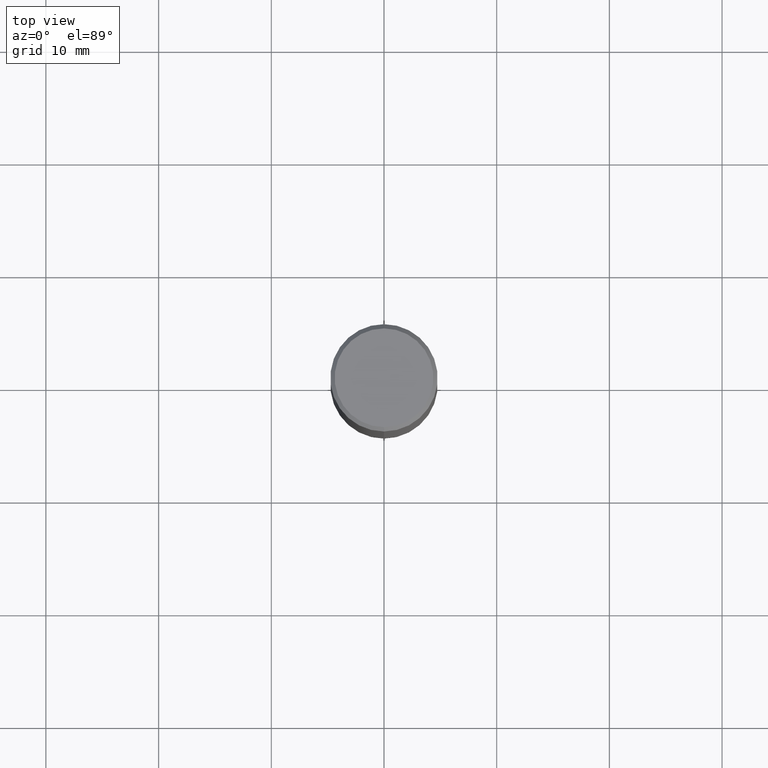
[diagram: clean part render]
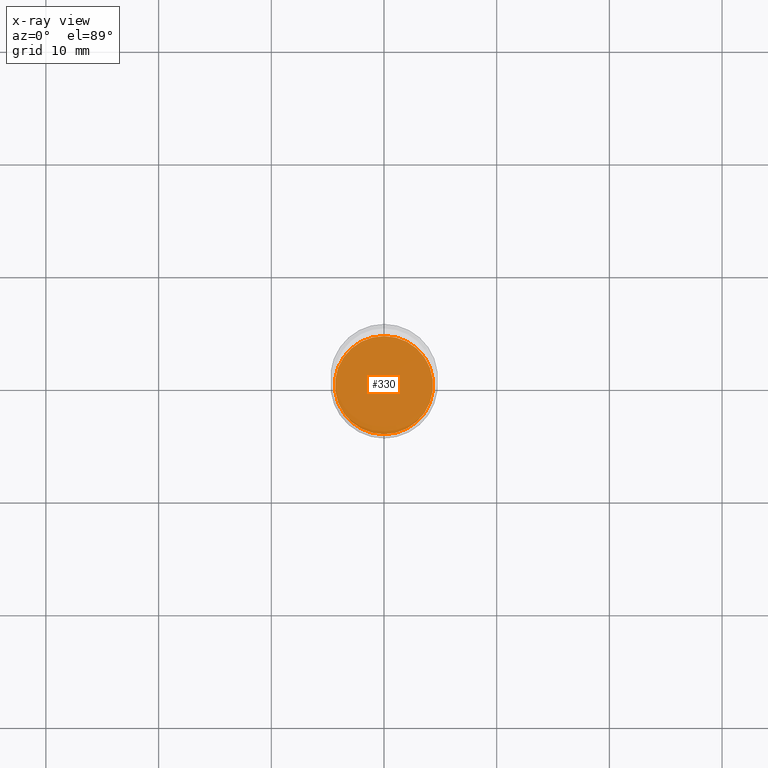
[diagram: x-ray — body ghosted, one internal face saturated and labeled with its STEP entity id]
A machine part, top view, then the same camera in x-ray: the body is ghosted and one INTERNAL B-rep face — a face not visible from any outside direction — is saturated and labeled: STEP entity #330.
In plain terms, the highlighted planar face has unit normal (-0, 0, 1).
Its self-contained STEP definition (entity closure, byte-faithful):
#1 = EDGE_LOOP ( 'NONE', ( #392, #140 ) ) ;
#55 = CARTESIAN_POINT ( 'NONE',  ( 3.667651660176758913E-29, -5.238011857969497816E-15, -1.500000000000000222 ) ) ;
#68 = VERTEX_POINT ( 'NONE', #490 ) ;
#94 = CIRCLE ( 'NONE', #136, 0.1713999999999999690 ) ;
#113 = EDGE_CURVE ( 'NONE', #243, #68, #94, .T. ) ;
#130 = CARTESIAN_POINT ( 'NONE',  ( 3.667651660176758913E-29, -5.238011857969497816E-15, -1.500000000000000222 ) ) ;
#135 = PLANE ( 'NONE',  #298 ) ;
#136 = AXIS2_PLACEMENT_3D ( 'NONE', #55, #372, #209 ) ;
#140 = ORIENTED_EDGE ( 'NONE', *, *, #113, .F. ) ;
#161 = CARTESIAN_POINT ( 'NONE',  ( 3.667651660176758913E-29, -5.238011857969497816E-15, -1.500000000000000222 ) ) ;
#209 = DIRECTION ( 'NONE',  ( -6.982962677686266711E-15, -1.000000000000000000, 3.187687273820611169E-15 ) ) ;
#243 = VERTEX_POINT ( 'NONE', #399 ) ;
#257 = AXIS2_PLACEMENT_3D ( 'NONE', #130, #285, #457 ) ;
#285 = DIRECTION ( 'NONE',  ( -2.445101106784506129E-29, 3.492007905312998807E-15, 1.000000000000000000 ) ) ;
#292 = CIRCLE ( 'NONE', #257, 0.1713999999999999690 ) ;
#298 = AXIS2_PLACEMENT_3D ( 'NONE', #161, #315, #317 ) ;
#315 = DIRECTION ( 'NONE',  ( -2.445101106784505568E-29, 3.492007905312998807E-15, 1.000000000000000000 ) ) ;
#317 = DIRECTION ( 'NONE',  ( -6.982962677686265922E-15, -1.000000000000000000, 3.492007905312998807E-15 ) ) ;
#330 = ADVANCED_FACE ( 'NONE', ( #500 ), #135, .F. ) ;
#372 = DIRECTION ( 'NONE',  ( -2.445101106784506129E-29, 3.492007905312998807E-15, 1.000000000000000000 ) ) ;
#392 = ORIENTED_EDGE ( 'NONE', *, *, #429, .F. ) ;
#399 = CARTESIAN_POINT ( 'NONE',  ( 1.219646605932247841E-15, 0.1713999999999947510, -1.500000000000000666 ) ) ;
#429 = EDGE_CURVE ( 'NONE', #68, #243, #292, .T. ) ;
#457 = DIRECTION ( 'NONE',  ( -6.982962677686266711E-15, -1.000000000000000000, 3.187687273820611169E-15 ) ) ;
#490 = CARTESIAN_POINT ( 'NONE',  ( -1.196879802955389158E-15, -0.1714000000000052149, -1.499999999999999556 ) ) ;
#500 = FACE_OUTER_BOUND ( 'NONE', #1, .T. ) ;